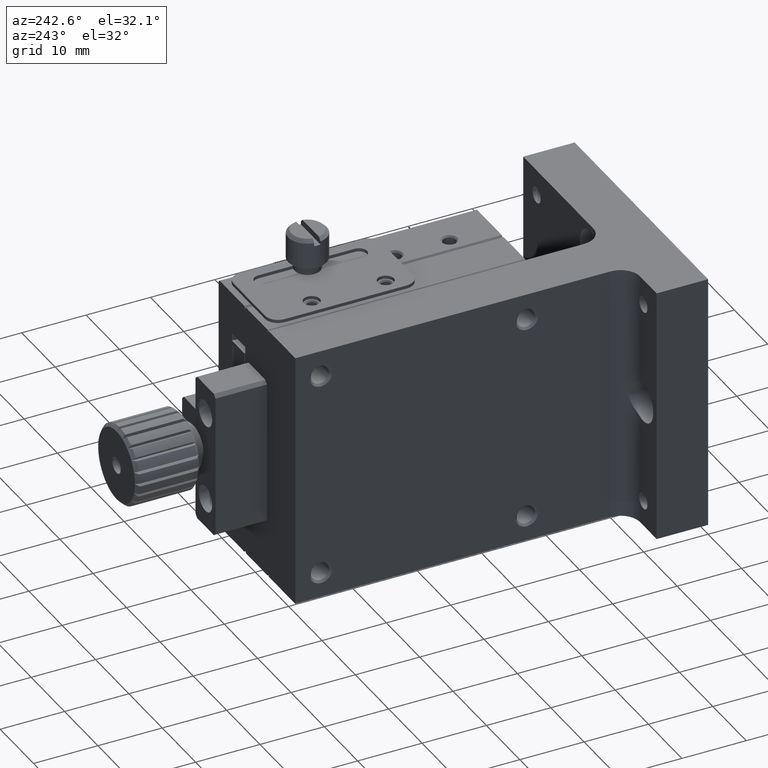
[diagram: clean part render]
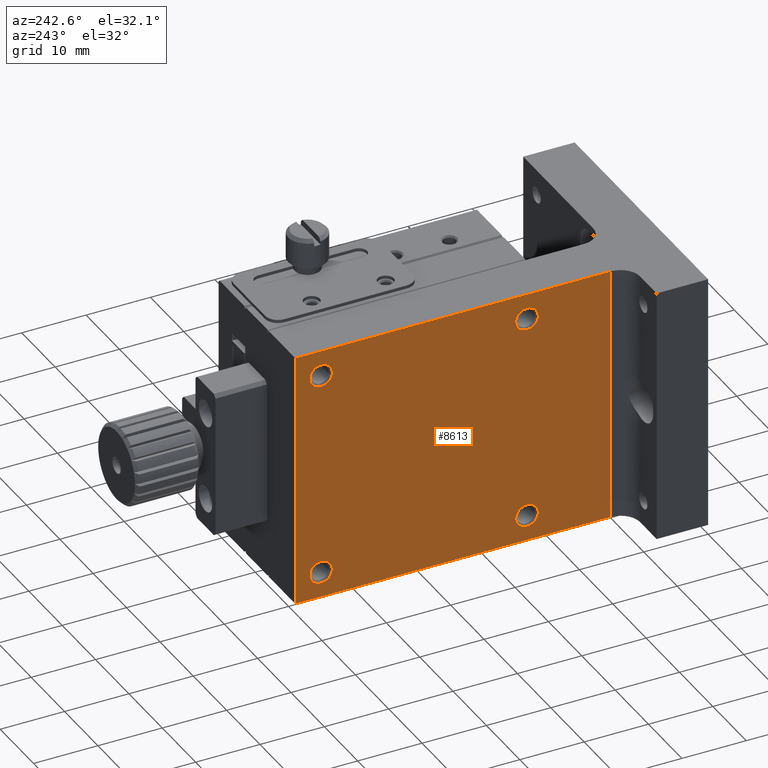
[diagram: same view with one face highlighted and labeled with its STEP entity id]
A machine part, auxiliary view. The second image highlights one B-rep face of the part: STEP entity #8613.
In plain terms, the highlighted planar face has unit normal (-1, 0, 0).
Its self-contained STEP definition (entity closure, byte-faithful):
#159 = DIRECTION ( 'NONE',  ( 1.000000000000000000, -0.000000000000000000, -0.000000000000000000 ) ) ;
#621 = VECTOR ( 'NONE', #9435, 1000.000000000000000 ) ;
#799 = PLANE ( 'NONE',  #1462 ) ;
#824 = DIRECTION ( 'NONE',  ( 0.000000000000000000, -0.000000000000000000, 1.000000000000000000 ) ) ;
#854 = FACE_BOUND ( 'NONE', #1709, .T. ) ;
#875 = CARTESIAN_POINT ( 'NONE',  ( 8.000000000000030198, 60.00000000000000000, -40.00000000000000000 ) ) ;
#905 = CARTESIAN_POINT ( 'NONE',  ( 8.000000000000030198, 60.00000000000000000, -40.00000000000000000 ) ) ;
#1159 = VERTEX_POINT ( 'NONE', #9631 ) ;
#1413 = CARTESIAN_POINT ( 'NONE',  ( 8.000000000038198777, 24.00000000000000000, -4.000000000000000000 ) ) ;
#1462 = AXIS2_PLACEMENT_3D ( 'NONE', #905, #8798, #3943 ) ;
#1539 = CARTESIAN_POINT ( 'NONE',  ( 8.000000000000030198, 60.00000000000000000, -40.00000000000000000 ) ) ;
#1709 = EDGE_LOOP ( 'NONE', ( #8520 ) ) ;
#2108 = DIRECTION ( 'NONE',  ( 0.000000000000000000, 0.000000000000000000, 1.000000000000000000 ) ) ;
#2118 = AXIS2_PLACEMENT_3D ( 'NONE', #7377, #159, #3367 ) ;
#2238 = DIRECTION ( 'NONE',  ( 0.000000000000000000, 0.000000000000000000, 1.000000000000000000 ) ) ;
#2318 = DIRECTION ( 'NONE',  ( 0.000000000000000000, -1.000000000000000000, -0.000000000000000000 ) ) ;
#2370 = LINE ( 'NONE', #3218, #4647 ) ;
#2607 = EDGE_CURVE ( 'NONE', #3924, #3924, #10191, .T. ) ;
#2724 = CARTESIAN_POINT ( 'NONE',  ( 7.999999999924511940, 56.00000000000000000, -34.24999999998590283 ) ) ;
#3218 = CARTESIAN_POINT ( 'NONE',  ( 8.000000000000030198, 11.00000000000000000, 0.000000000000000000 ) ) ;
#3345 = AXIS2_PLACEMENT_3D ( 'NONE', #1413, #8685, #10292 ) ;
#3367 = DIRECTION ( 'NONE',  ( 0.000000000000000000, 0.000000000000000000, 1.000000000000000000 ) ) ;
#3543 = EDGE_CURVE ( 'NONE', #7111, #4861, #4874, .T. ) ;
#3626 = VERTEX_POINT ( 'NONE', #4922 ) ;
#3924 = VERTEX_POINT ( 'NONE', #7146 ) ;
#3943 = DIRECTION ( 'NONE',  ( 0.000000000000000000, 0.000000000000000000, 1.000000000000000000 ) ) ;
#3962 = CARTESIAN_POINT ( 'NONE',  ( 8.000000000038198777, 56.00000000000000000, -2.250000000003637979 ) ) ;
#4047 = FACE_BOUND ( 'NONE', #6005, .T. ) ;
#4077 = CARTESIAN_POINT ( 'NONE',  ( 8.000000000038198777, 56.00000000000000000, -4.000000000000000000 ) ) ;
#4192 = CIRCLE ( 'NONE', #4871, 1.749999999996362021 ) ;
#4218 = EDGE_CURVE ( 'NONE', #7111, #3626, #7956, .T. ) ;
#4344 = VECTOR ( 'NONE', #7306, 1000.000000000000000 ) ;
#4396 = CARTESIAN_POINT ( 'NONE',  ( 8.000000000000030198, 60.00000000000000000, 0.000000000000000000 ) ) ;
#4527 = ORIENTED_EDGE ( 'NONE', *, *, #3543, .F. ) ;
#4647 = VECTOR ( 'NONE', #2318, 1000.000000000000000 ) ;
#4861 = VERTEX_POINT ( 'NONE', #4396 ) ;
#4871 = AXIS2_PLACEMENT_3D ( 'NONE', #4077, #8051, #2238 ) ;
#4874 = LINE ( 'NONE', #875, #9870 ) ;
#4878 = CARTESIAN_POINT ( 'NONE',  ( 8.000000000000030198, 10.99999999999999645, -40.00000000000000000 ) ) ;
#4922 = CARTESIAN_POINT ( 'NONE',  ( 8.000000000000030198, 10.99999999999999822, -40.00000000000000000 ) ) ;
#5088 = ORIENTED_EDGE ( 'NONE', *, *, #5797, .F. ) ;
#5123 = EDGE_LOOP ( 'NONE', ( #8465 ) ) ;
#5170 = EDGE_CURVE ( 'NONE', #5240, #5240, #5480, .T. ) ;
#5240 = VERTEX_POINT ( 'NONE', #2724 ) ;
#5387 = ORIENTED_EDGE ( 'NONE', *, *, #6820, .T. ) ;
#5480 = CIRCLE ( 'NONE', #2118, 1.750000000014101387 ) ;
#5624 = AXIS2_PLACEMENT_3D ( 'NONE', #10142, #9342, #2108 ) ;
#5709 = VERTEX_POINT ( 'NONE', #3962 ) ;
#5797 = EDGE_CURVE ( 'NONE', #4861, #1159, #2370, .T. ) ;
#5931 = LINE ( 'NONE', #4878, #4344 ) ;
#6005 = EDGE_LOOP ( 'NONE', ( #7384 ) ) ;
#6253 = EDGE_LOOP ( 'NONE', ( #8675 ) ) ;
#6412 = ORIENTED_EDGE ( 'NONE', *, *, #4218, .T. ) ;
#6820 = EDGE_CURVE ( 'NONE', #3626, #1159, #5931, .T. ) ;
#6981 = CARTESIAN_POINT ( 'NONE',  ( 8.000000000038198777, 24.00000000000000000, -2.250000000003637979 ) ) ;
#7111 = VERTEX_POINT ( 'NONE', #1539 ) ;
#7146 = CARTESIAN_POINT ( 'NONE',  ( 7.999999999924511940, 24.00000000000000000, -34.24999999998590283 ) ) ;
#7167 = FACE_OUTER_BOUND ( 'NONE', #9731, .T. ) ;
#7274 = FACE_BOUND ( 'NONE', #6253, .T. ) ;
#7306 = DIRECTION ( 'NONE',  ( 0.000000000000000000, 0.000000000000000000, 1.000000000000000000 ) ) ;
#7377 = CARTESIAN_POINT ( 'NONE',  ( 7.999999999924511940, 56.00000000000000000, -36.00000000000000711 ) ) ;
#7384 = ORIENTED_EDGE ( 'NONE', *, *, #7445, .T. ) ;
#7445 = EDGE_CURVE ( 'NONE', #7730, #7730, #8405, .T. ) ;
#7730 = VERTEX_POINT ( 'NONE', #6981 ) ;
#7920 = EDGE_CURVE ( 'NONE', #5709, #5709, #4192, .T. ) ;
#7956 = LINE ( 'NONE', #8063, #621 ) ;
#8022 = FACE_BOUND ( 'NONE', #5123, .T. ) ;
#8051 = DIRECTION ( 'NONE',  ( 1.000000000000000000, -0.000000000000000000, -0.000000000000000000 ) ) ;
#8063 = CARTESIAN_POINT ( 'NONE',  ( 8.000000000000030198, 11.00000000000000000, -40.00000000000000000 ) ) ;
#8405 = CIRCLE ( 'NONE', #3345, 1.749999999996362021 ) ;
#8465 = ORIENTED_EDGE ( 'NONE', *, *, #2607, .T. ) ;
#8520 = ORIENTED_EDGE ( 'NONE', *, *, #5170, .T. ) ;
#8613 = ADVANCED_FACE ( 'NONE', ( #7167, #4047, #7274, #854, #8022 ), #799, .T. ) ;
#8675 = ORIENTED_EDGE ( 'NONE', *, *, #7920, .T. ) ;
#8685 = DIRECTION ( 'NONE',  ( 1.000000000000000000, -0.000000000000000000, -0.000000000000000000 ) ) ;
#8798 = DIRECTION ( 'NONE',  ( -1.000000000000000000, 0.000000000000000000, 0.000000000000000000 ) ) ;
#9342 = DIRECTION ( 'NONE',  ( 1.000000000000000000, -0.000000000000000000, -0.000000000000000000 ) ) ;
#9435 = DIRECTION ( 'NONE',  ( 0.000000000000000000, -1.000000000000000000, -0.000000000000000000 ) ) ;
#9631 = CARTESIAN_POINT ( 'NONE',  ( 8.000000000000030198, 10.99999999999999822, 0.000000000000000000 ) ) ;
#9731 = EDGE_LOOP ( 'NONE', ( #6412, #5387, #5088, #4527 ) ) ;
#9870 = VECTOR ( 'NONE', #824, 1000.000000000000000 ) ;
#10142 = CARTESIAN_POINT ( 'NONE',  ( 7.999999999924511940, 24.00000000000000000, -36.00000000000000711 ) ) ;
#10191 = CIRCLE ( 'NONE', #5624, 1.750000000014101387 ) ;
#10292 = DIRECTION ( 'NONE',  ( 0.000000000000000000, 0.000000000000000000, 1.000000000000000000 ) ) ;